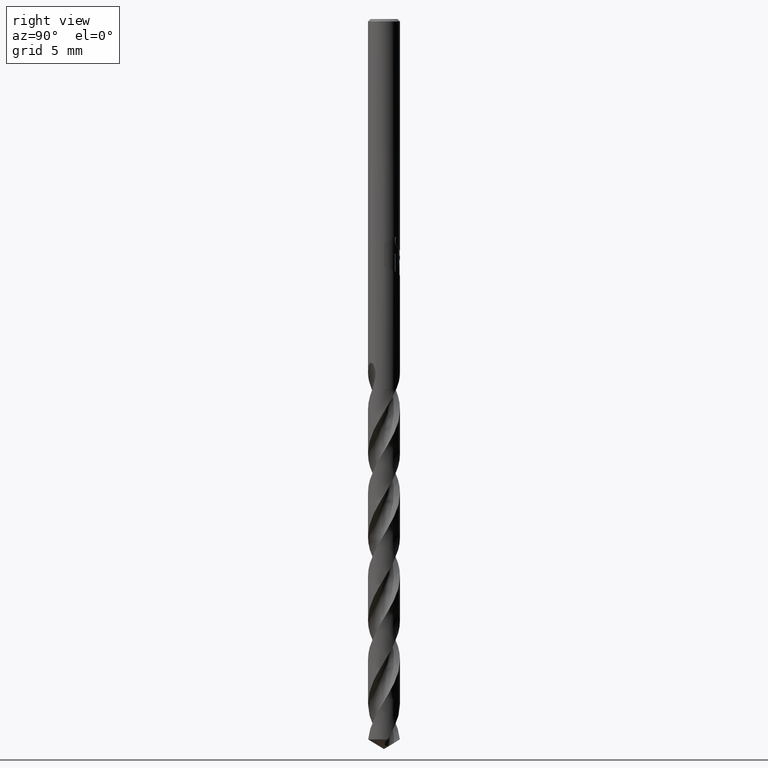
[diagram: clean part render]
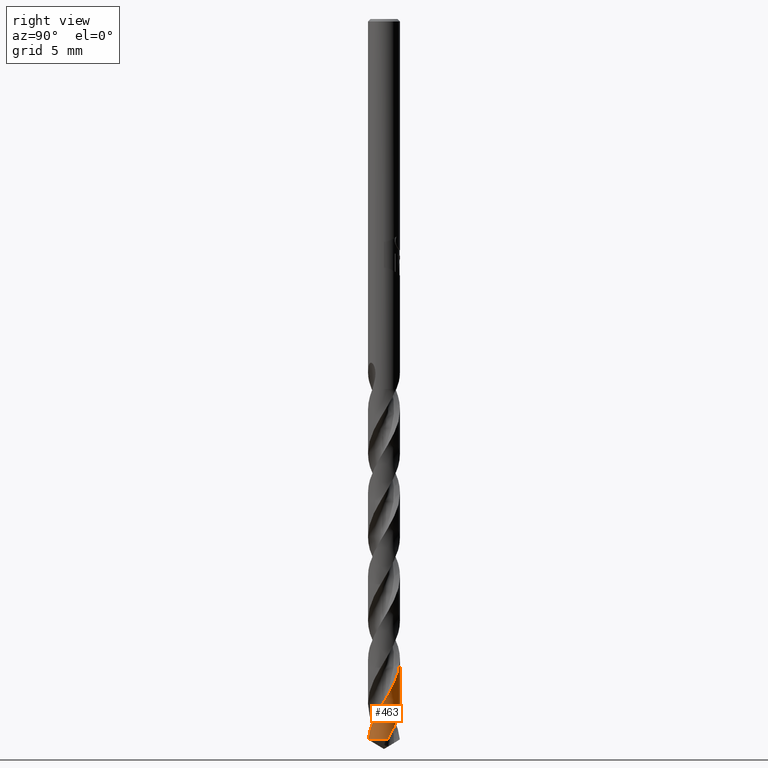
[diagram: same view with one face highlighted and labeled with its STEP entity id]
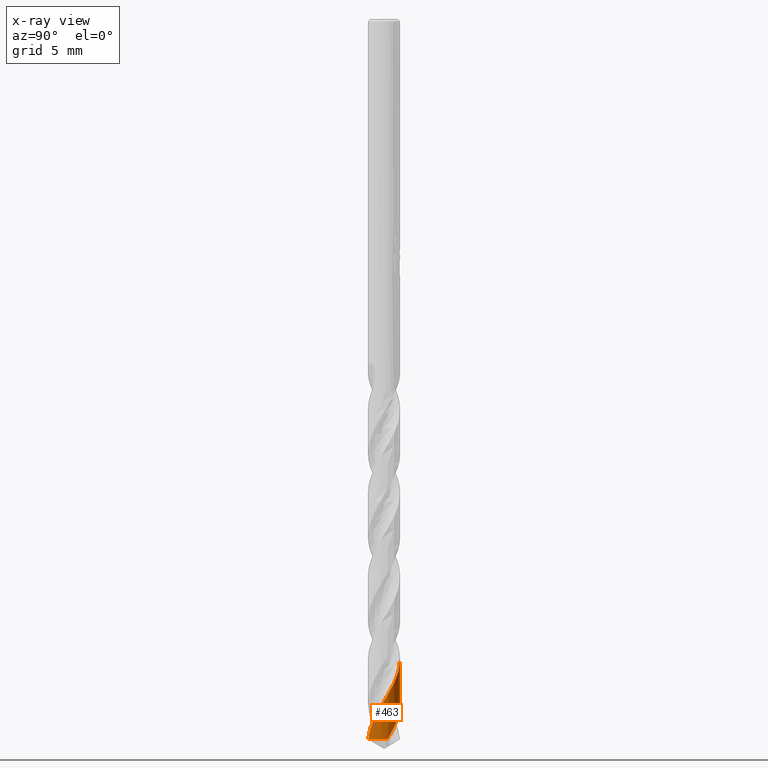
[diagram: x-ray of the same camera — body ghosted, the highlighted face saturated]
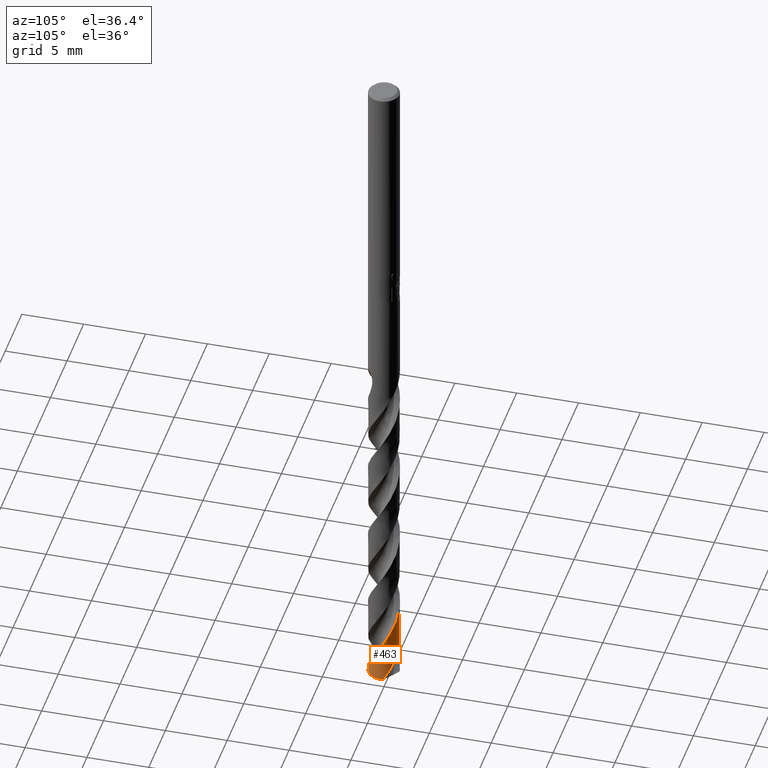
[diagram: same view with one face highlighted and labeled with its STEP entity id]
A machine part, right view. The second image highlights one B-rep face of the part: STEP entity #463.
The next image is the same camera in x-ray: the body ghosted, the highlighted face saturated — about 0% of this face is hidden behind the body in this view.
A second angle (auxiliary view) of the same face is appended — the face is thin or edge-on in the first view.
In plain terms, the highlighted conical surface has half-angle 0 deg.
Its self-contained STEP definition (entity closure, byte-faithful):
#315=EDGE_CURVE('',#749,#375,#838,.T.);
#365=EDGE_CURVE('',#473,#375,#892,.T.);
#375=VERTEX_POINT('',#902);
#463=ADVANCED_FACE('',(#995),#996,.T.);
#471=EDGE_CURVE('',#473,#693,#1004,.T.);
#473=VERTEX_POINT('',#1006);
#693=VERTEX_POINT('',#1248);
#749=VERTEX_POINT('',#1310);
#755=EDGE_CURVE('',#749,#693,#1316,.T.);
#838=LINE('',#1756,#1757);
#892=B_SPLINE_CURVE_WITH_KNOTS('',3,(#2591,#2592,#2593,#2594,#2595,#2596,#2597,#2598,#2599,#2600,#2601,#2602,#2603,#2604,#2605,#2606,#2607,#2608,#2609,#2610,#2611,#2612,#2613,#2614,#2615,#2616,#2617,#2618,#2619,#2620,#2621,#2622,#2623,#2624,#2625,#2626,#2627,#2628,#2629,#2630,#2631,#2632,#2633,#2634,#2635,#2636,#2637,#2638,#2639,#2640,#2641,#2642,#2643,#2644,#2645,#2646,#2647,#2648,#2649,#2650,#2651,#2652,#2653,#2654,#2655,#2656,#2657,#2658,#2659,#2660,#2661,#2662,#2663,#2664,#2665,#2666,#2667,#2668,#2669,#2670,#2671,#2672,#2673,#2674,#2675,#2676,#2677,#2678,#2679,#2680,#2681,#2682,#2683,#2684,#2685,#2686,#2687,#2688,#2689,#2690,#2691,#2692,#2693,#2694,#2695,#2696,#2697,#2698,#2699,#2700,#2701,#2702,#2703,#2704,#2705,#2706,#2707,#2708,#2709,#2710,#2711,#2712,#2713,#2714,#2715,#2716,#2717,#2718,#2719,#2720,#2721,#2722,#2723,#2724,#2725,#2726,#2727,#2728,#2729,#2730,#2731,#2732,#2733,#2734,#2735,#2736,#2737,#2738,#2739,#2740),.UNSPECIFIED.,.F.,.F.,(4,2,2,2,2,2,2,2,2,2,2,2,2,2,2,2,2,2,2,2,2,2,2,2,2,2,2,2,2,2,2,2,2,2,2,2,2,2,2,2,2,2,2,2,2,2,2,2,2,2,2,2,2,2,2,2,2,2,2,2,2,2,2,2,2,2,2,2,2,2,2,2,2,2,4),(0.0,0.365916372222381,0.820304791255195,1.04655696786123,1.27803307812477,2.11266659182698,2.32275710199181,3.15788784397125,3.36212088962481,4.21683285897001,4.31563751838501,5.03475957910948,5.66145739077558,6.1102102127332,6.65287451289157,7.09969309095822,7.70523282328109,8.15333191463379,8.62750838921573,9.27581148330259,9.50252762851326,10.2990852815213,10.5310919660561,11.3205802459735,11.5605495352967,12.3403776657064,12.8353441999944,13.2851131150844,13.9213311786311,14.373701780281,14.9170809289804,15.3673247441859,15.979547237918,16.4311816263969,16.9089785846059,17.5646067982347,17.7916233352997,18.597299418671,18.8287801051193,19.6280799395391,19.8666041904523,20.6570301266019,21.1467772154434,21.5996978178747,22.242180949172,22.6978093734393,23.2436558936871,23.6970731446351,24.3144593837787,24.7693138109984,25.2504682043452,25.9121513271063,26.1400153917101,26.9507141600616,27.1833007364029,27.9920988956226,28.2331617409005,29.0370226530138,29.4918883354473,30.0084083575428,30.4597777006986,30.9059589686864,31.2500066492073,31.3290123694641,31.4340604846941,31.5372028871265,31.6848006548203,31.9147010355751,32.010917240923,32.0711725410525,32.1268236191268,32.1998986544673,32.357736841362,32.5721091756097,33.0274677063609),.UNSPECIFIED.);
#902=CARTESIAN_POINT('',(-3.2190571851482E-012,1.24998980619325,-53.4600083611403));
#995=FACE_OUTER_BOUND('',#3449,.T.);
#996=CONICAL_SURFACE('',#3450,1.24995,3.65511447645748E-006);
#1004=CIRCLE('',#3494,1.25);
#1006=CARTESIAN_POINT('',(1.21820199376776,0.280149785615211,-56.2489242262156));
#1248=CARTESIAN_POINT('',(0.175120365243371,-1.23767235473571,-56.2489242262156));
#1310=CARTESIAN_POINT('',(-1.63085901644642E-015,1.24997726255621,-50.0282042075411));
#1316=B_SPLINE_CURVE_WITH_KNOTS('',3,(#8398,#8399,#8400,#8401,#8402,#8403,#8404,#8405,#8406,#8407,#8408,#8409,#8410,#8411,#8412,#8413,#8414,#8415,#8416,#8417,#8418,#8419,#8420,#8421,#8422,#8423,#8424,#8425,#8426,#8427,#8428,#8429,#8430,#8431,#8432,#8433,#8434,#8435,#8436,#8437,#8438,#8439,#8440,#8441,#8442,#8443,#8444,#8445,#8446,#8447,#8448,#8449,#8450,#8451,#8452,#8453,#8454,#8455,#8456,#8457,#8458,#8459,#8460,#8461,#8462,#8463,#8464,#8465,#8466,#8467,#8468,#8469,#8470,#8471,#8472,#8473,#8474,#8475,#8476,#8477,#8478,#8479,#8480,#8481,#8482,#8483,#8484,#8485,#8486,#8487,#8488,#8489,#8490,#8491,#8492,#8493,#8494,#8495,#8496,#8497,#8498,#8499,#8500,#8501,#8502,#8503,#8504,#8505,#8506,#8507,#8508,#8509,#8510,#8511,#8512,#8513,#8514,#8515,#8516,#8517,#8518,#8519,#8520,#8521,#8522,#8523,#8524,#8525,#8526,#8527,#8528,#8529,#8530,#8531,#8532,#8533,#8534,#8535,#8536,#8537,#8538,#8539,#8540,#8541,#8542,#8543,#8544,#8545,#8546,#8547,#8548,#8549,#8550,#8551,#8552,#8553,#8554,#8555,#8556,#8557,#8558,#8559,#8560,#8561,#8562,#8563,#8564,#8565,#8566,#8567,#8568,#8569,#8570,#8571,#8572,#8573,#8574,#8575,#8576,#8577),.UNSPECIFIED.,.F.,.F.,(4,2,2,2,2,2,2,2,2,2,2,2,2,2,2,2,2,2,2,2,2,2,2,2,2,2,2,2,2,2,2,2,2,2,2,2,2,2,2,2,2,2,2,2,2,2,2,2,2,2,2,2,2,2,2,2,2,2,2,2,2,2,2,2,2,2,2,2,2,2,2,2,2,2,2,2,2,2,2,2,2,2,2,2,2,2,2,2,2,4),(0.0,0.0909348931718711,0.115186404871069,0.126380924618009,0.133713174575487,0.13948985167161,0.143998271473783,0.147488724298821,0.150173072160435,0.152226289511834,0.153789951420098,0.154976708090192,0.155875004566876,0.156553553889951,0.316042703266544,0.352636866964819,0.372468255474102,0.389006252391213,0.408476555021637,0.443421068836232,0.486408987907577,0.60269619316079,0.755117598854112,0.830415767092418,0.89063847978405,0.959537293950322,0.997951065865658,1.09698685808744,1.30077163526895,1.48442158252795,1.66019078902333,2.14607847380218,2.75932737589629,3.5783399073448,3.8065169713828,4.29200475412673,4.89939587442972,5.27658758449398,5.86265981877751,6.3252195000613,6.94965006182895,7.32635802853059,7.91129176533725,8.37867294591997,9.00863678988123,9.37497656258834,9.95776221305471,10.4308968229521,11.065683557127,11.4236683442172,12.0056654136052,12.4802578372729,13.1159354979964,13.4719022686478,14.0533447300325,14.5286798215418,15.1652239522879,15.519369418626,16.1008941549275,16.5751121737535,17.2105555432538,17.5658527380777,18.1471049861199,18.6212119408332,19.2563336845716,19.6115126588065,20.1921493381833,20.6671410470568,21.3030497491658,21.6565153287659,22.23733066286,22.7109259570928,23.34555713719,23.7004541160807,24.2809905435139,24.7545116749879,25.3889046918527,25.7435711029265,26.3236035371818,26.7976664052889,27.4320243638706,27.7860757874193,28.3668763025597,28.8387480909508,29.4705654763868,29.8256577611619,30.4019313972766,31.1266380394981,31.4946311360113,31.8656853193045),.UNSPECIFIED.);
#1756=CARTESIAN_POINT('',(-1.5309022535244E-016,1.24995,-42.5694621131078));
#1757=VECTOR('',#8697,1.0);
#2591=CARTESIAN_POINT('',(1.21820199376776,0.28014978561521,-56.2489242262156));
#2592=CARTESIAN_POINT('',(1.20410905613125,0.341429744020133,-56.1444093714923));
#2593=CARTESIAN_POINT('',(1.18545508216414,0.401442202196847,-56.0392148419657));
#2594=CARTESIAN_POINT('',(1.13353361235069,0.532640807342113,-55.8047358331904));
#2595=CARTESIAN_POINT('',(1.09797794156153,0.602568552148083,-55.6757900692852));
#2596=CARTESIAN_POINT('',(1.03512589482031,0.70180628452883,-55.48153377448));
#2597=CARTESIAN_POINT('',(1.01273372599989,0.733742036686589,-55.4170400205659));
#2598=CARTESIAN_POINT('',(0.964577700768516,0.796031649957002,-55.2862440947739));
#2599=CARTESIAN_POINT('',(0.938791865387572,0.826280725525036,-55.2198763125255));
#2600=CARTESIAN_POINT('',(0.813553650432938,0.959766775718274,-54.9154117926667));
#2601=CARTESIAN_POINT('',(0.698371562676192,1.04654111006414,-54.6822663986016));
#2602=CARTESIAN_POINT('',(0.539004506046306,1.12838605034473,-54.3841230595476));
#2603=CARTESIAN_POINT('',(0.50631702429609,1.14342719857296,-54.3239877452621));
#2604=CARTESIAN_POINT('',(0.34025396415216,1.21130225208029,-54.0255183664637));
#2605=CARTESIAN_POINT('',(0.199371651772876,1.24226445905972,-53.7923584524739));
#2606=CARTESIAN_POINT('',(0.0213927162779941,1.25029706993826,-53.4957634294143));
#2607=CARTESIAN_POINT('',(-0.013592674366106,1.25040823952202,-53.43731385323));
#2608=CARTESIAN_POINT('',(-0.195389180823723,1.24332548969328,-53.1347221011557));
#2609=CARTESIAN_POINT('',(-0.339745977248664,1.21181909207782,-52.8961505881404));
#2610=CARTESIAN_POINT('',(-0.490911865738856,1.14967788452035,-52.6237550909922));
#2611=CARTESIAN_POINT('',(-0.506409051772072,1.14293623472397,-52.5955154354022));
#2612=CARTESIAN_POINT('',(-0.633791154985301,1.08441828693158,-52.3618319198906));
#2613=CARTESIAN_POINT('',(-0.737745575189316,1.01661602764539,-52.1597797065531));
#2614=CARTESIAN_POINT('',(-0.910872352043278,0.862786915403041,-51.7762893872643));
#2615=CARTESIAN_POINT('',(-0.981842697197945,0.781081638638097,-51.596592306726));
#2616=CARTESIAN_POINT('',(-1.08424155013131,0.626774594496716,-51.2901782319376));
#2617=CARTESIAN_POINT('',(-1.12087708268031,0.558607032604259,-51.163130991496));
#2618=CARTESIAN_POINT('',(-1.18736770192021,0.401640697043869,-50.880548036016));
#2619=CARTESIAN_POINT('',(-1.21403071792353,0.311943777511795,-50.7248636101863));
#2620=CARTESIAN_POINT('',(-1.24401022911272,0.144235978356031,-50.4428197668445));
#2621=CARTESIAN_POINT('',(-1.25052426921931,0.0674385305644809,-50.3162856082723));
#2622=CARTESIAN_POINT('',(-1.24915308772798,-0.113665490209233,-50.0163245965857));
#2623=CARTESIAN_POINT('',(-1.23535303342366,-0.217304467333834,-49.8426249323484));
#2624=CARTESIAN_POINT('',(-1.18916201225734,-0.392795877151728,-49.5423252244575));
#2625=CARTESIAN_POINT('',(-1.16265743325968,-0.465410963312582,-49.4154221183314));
#2626=CARTESIAN_POINT('',(-1.09474065419113,-0.60879545266425,-49.1524907930443));
#2627=CARTESIAN_POINT('',(-1.05276089813011,-0.678804416925763,-49.0164485493102));
#2628=CARTESIAN_POINT('',(-0.937838281631376,-0.833855841037921,-48.6964415976163));
#2629=CARTESIAN_POINT('',(-0.859831726777781,-0.914054879705369,-48.5140492689586));
#2630=CARTESIAN_POINT('',(-0.741765859433254,-1.00683870089639,-48.2645323541768));
#2631=CARTESIAN_POINT('',(-0.710149999251599,-1.02937779261458,-48.1996624347888));
#2632=CARTESIAN_POINT('',(-0.562997307344565,-1.12429477797017,-47.9081549885288));
#2633=CARTESIAN_POINT('',(-0.437145352873387,-1.17895409437766,-47.6858164078551));
#2634=CARTESIAN_POINT('',(-0.266325977552613,-1.22191163861543,-47.3932285446972));
#2635=CARTESIAN_POINT('',(-0.227456388944933,-1.22973548637108,-47.3269984913132));
#2636=CARTESIAN_POINT('',(-0.0551399642281717,-1.255995219554,-47.0367829827852));
#2637=CARTESIAN_POINT('',(0.0804643335487957,-1.25464306762575,-46.8169111478318));
#2638=CARTESIAN_POINT('',(0.253747840730879,-1.22462391212793,-46.5249064779365));
#2639=CARTESIAN_POINT('',(0.293667835077306,-1.21566240491649,-46.4565884011634));
#2640=CARTESIAN_POINT('',(0.460825169899684,-1.16945934072554,-46.1677777568871));
#2641=CARTESIAN_POINT('',(0.582270947730163,-1.11400781795543,-45.9511575959867));
#2642=CARTESIAN_POINT('',(0.763016551857143,-0.993638569212133,-45.5907884139783));
#2643=CARTESIAN_POINT('',(0.828342121005244,-0.939891335338529,-45.4499410704943));
#2644=CARTESIAN_POINT('',(0.941907983050284,-0.825292665207506,-45.1827816736736));
#2645=CARTESIAN_POINT('',(0.990824108380374,-0.765874477398094,-45.0564211011999));
#2646=CARTESIAN_POINT('',(1.09502046038628,-0.612476477190127,-44.7493644850366));
#2647=CARTESIAN_POINT('',(1.14406336163026,-0.515102063882328,-44.568354215101));
#2648=CARTESIAN_POINT('',(1.20544367571303,-0.339515367807576,-44.2605987320337));
#2649=CARTESIAN_POINT('',(1.22410872485536,-0.264392343952961,-44.1335187175482));
#2650=CARTESIAN_POINT('',(1.24967131992688,-0.0964474954298429,-43.8518914246015));
#2651=CARTESIAN_POINT('',(1.25339170561286,-0.00355262914592747,-43.6972047446365));
#2652=CARTESIAN_POINT('',(1.24129751365793,0.165771538084262,-43.4161634427148));
#2653=CARTESIAN_POINT('',(1.22874847012308,0.241807134532719,-43.2896420332044));
#2654=CARTESIAN_POINT('',(1.18284947171998,0.417344866219538,-42.9891370812945));
#2655=CARTESIAN_POINT('',(1.14384810027036,0.514719341237845,-42.8148771335829));
#2656=CARTESIAN_POINT('',(1.05566861295378,0.673717831483743,-42.5140059331638));
#2657=CARTESIAN_POINT('',(1.01208224917024,0.737567570596285,-42.3870889335211));
#2658=CARTESIAN_POINT('',(0.910928718656775,0.859785646532399,-42.1241603650451));
#2659=CARTESIAN_POINT('',(0.853000475108017,0.917281403786797,-41.9881368408775));
#2660=CARTESIAN_POINT('',(0.703119289906316,1.03947221435076,-41.6674995961627));
#2661=CARTESIAN_POINT('',(0.607394696279641,1.09813433929555,-41.4844842056763));
#2662=CARTESIAN_POINT('',(0.469932764023076,1.15888746703109,-41.2347238844859));
#2663=CARTESIAN_POINT('',(0.433963253473107,1.1728276031107,-41.1702687877685));
#2664=CARTESIAN_POINT('',(0.267678621647331,1.22858869715877,-40.878308974602));
#2665=CARTESIAN_POINT('',(0.131705032662765,1.2505017261614,-40.6551643506717));
#2666=CARTESIAN_POINT('',(-0.0445343119225877,1.2497674812417,-40.3623532326411));
#2667=CARTESIAN_POINT('',(-0.0837367379952451,1.2477498435532,-40.2967743424354));
#2668=CARTESIAN_POINT('',(-0.257485910034622,1.23060218118008,-40.0060911296217));
#2669=CARTESIAN_POINT('',(-0.389172401786369,1.19551597703978,-39.785179676178));
#2670=CARTESIAN_POINT('',(-0.549638770550786,1.12333408915843,-39.4929634498503));
#2671=CARTESIAN_POINT('',(-0.585596647170808,1.10500894452522,-39.4255598365027));
#2672=CARTESIAN_POINT('',(-0.736404039743256,1.01875596388353,-39.136258015713));
#2673=CARTESIAN_POINT('',(-0.840937443705223,0.934360472320961,-38.9183295749525));
#2674=CARTESIAN_POINT('',(-0.985525545982784,0.773262993360266,-38.5590200852484));
#2675=CARTESIAN_POINT('',(-1.03463897599773,0.706226582093686,-38.4206477811134));
#2676=CARTESIAN_POINT('',(-1.11580465938432,0.568518373844225,-38.155948708847));
#2677=CARTESIAN_POINT('',(-1.14861708348147,0.498908549249296,-38.0295980489038));
#2678=CARTESIAN_POINT('',(-1.21202452269462,0.324336688891875,-37.722060815145));
#2679=CARTESIAN_POINT('',(-1.23566339334401,0.217594719361373,-37.5405575724803));
#2680=CARTESIAN_POINT('',(-1.25190995181539,0.0319939040263573,-37.2322974697995));
#2681=CARTESIAN_POINT('',(-1.25148683221252,-0.0454189136298422,-37.1052040746329));
#2682=CARTESIAN_POINT('',(-1.23489594101058,-0.214252842420625,-36.8239505599607));
#2683=CARTESIAN_POINT('',(-1.21568405734793,-0.30497142188473,-36.6696546182179));
#2684=CARTESIAN_POINT('',(-1.16240162578477,-0.465894053745107,-36.3890052185059));
#2685=CARTESIAN_POINT('',(-1.13154332430456,-0.536505746412631,-36.2624880380831));
#2686=CARTESIAN_POINT('',(-1.04382601156805,-0.695486668674035,-35.9617559238582));
#2687=CARTESIAN_POINT('',(-0.981982322860469,-0.780384471257833,-35.7872627038756));
#2688=CARTESIAN_POINT('',(-0.857274016688786,-0.912879666675252,-35.4861542727275));
#2689=CARTESIAN_POINT('',(-0.79930740685823,-0.964033220713045,-35.3592318746789));
#2690=CARTESIAN_POINT('',(-0.671180174789407,-1.05757945687364,-35.0963048923989));
#2691=CARTESIAN_POINT('',(-0.600884800738551,-1.09903920745995,-34.9602895511239));
#2692=CARTESIAN_POINT('',(-0.42532449064596,-1.18066381357752,-34.6392630702137));
#2693=CARTESIAN_POINT('',(-0.317868247592029,-1.21399102926519,-34.4558653278429));
#2694=CARTESIAN_POINT('',(-0.169569250330597,-1.23896281157106,-34.2059163021735));
#2695=CARTESIAN_POINT('',(-0.131403066177591,-1.24358676407824,-34.1416751551126));
#2696=CARTESIAN_POINT('',(0.0432643616679772,-1.25662925672517,-33.8500985988967));
#2697=CARTESIAN_POINT('',(0.180338774400432,-1.24438170246984,-33.6271295339079));
#2698=CARTESIAN_POINT('',(0.350786135365474,-1.20032499722428,-33.3346395917714));
#2699=CARTESIAN_POINT('',(0.388202962392441,-1.18874674454323,-33.2692076057314));
#2700=CARTESIAN_POINT('',(0.552920989937954,-1.1291904842649,-32.9775801484857));
#2701=CARTESIAN_POINT('',(0.672451519282842,-1.06237118355085,-32.7556008834826));
#2702=CARTESIAN_POINT('',(0.810671109803522,-0.952229925177029,-32.4620436384989));
#2703=CARTESIAN_POINT('',(0.841078101316887,-0.925475535909484,-32.3943936747231));
#2704=CARTESIAN_POINT('',(0.966918947104009,-0.803449820503801,-32.102581390896));
#2705=CARTESIAN_POINT('',(1.04789912055914,-0.694545134067448,-31.8826599150357));
#2706=CARTESIAN_POINT('',(1.14505165253799,-0.506913095142234,-31.5316604558756));
#2707=CARTESIAN_POINT('',(1.17390505528938,-0.435982787276063,-31.4039065922303));
#2708=CARTESIAN_POINT('',(1.22134908163326,-0.279525609791277,-31.1328422592674));
#2709=CARTESIAN_POINT('',(1.23784939079713,-0.193862807749795,-30.9898562325325));
#2710=CARTESIAN_POINT('',(1.25183109006335,-0.0312674420418367,-30.7200263125132));
#2711=CARTESIAN_POINT('',(1.25139741945611,0.044869078879907,-30.5939381037975));
#2712=CARTESIAN_POINT('',(1.23689231733525,0.194865539330464,-30.3436714747797));
#2713=CARTESIAN_POINT('',(1.22304204058351,0.2682501226057,-30.2186955066205));
#2714=CARTESIAN_POINT('',(1.18724287908937,0.394969941847528,-29.9998207624113));
#2715=CARTESIAN_POINT('',(1.16771899473848,0.449588868082158,-29.9048648798672));
#2716=CARTESIAN_POINT('',(1.13868627797503,0.515590053844311,-29.7886487706097));
#2717=CARTESIAN_POINT('',(1.13323553471026,0.527458677085438,-29.7677520089207));
#2718=CARTESIAN_POINT('',(1.11984290189537,0.555448539683174,-29.7177250198585));
#2719=CARTESIAN_POINT('',(1.11191583079295,0.571143513940307,-29.6891449775576));
#2720=CARTESIAN_POINT('',(1.0956887337456,0.60167803870643,-29.6322436904478));
#2721=CARTESIAN_POINT('',(1.08741865844893,0.616489234861031,-29.6039991255838));
#2722=CARTESIAN_POINT('',(1.06681773391757,0.6517153173066,-29.5349698996659));
#2723=CARTESIAN_POINT('',(1.05432795256197,0.671700379668845,-29.4942101890809));
#2724=CARTESIAN_POINT('',(1.0216772516071,0.720918883430235,-29.3889080729789));
#2725=CARTESIAN_POINT('',(1.00766951643639,0.739687028135159,-29.3436591053657));
#2726=CARTESIAN_POINT('',(0.993353185737608,0.758651665633933,-29.2997285105938));
#2727=CARTESIAN_POINT('',(0.989011996773971,0.764304622040717,-29.2868417442988));
#2728=CARTESIAN_POINT('',(0.981742367420288,0.773599390988861,-29.2659858078745));
#2729=CARTESIAN_POINT('',(0.97889402665135,0.777201005501608,-29.2579837352849));
#2730=CARTESIAN_POINT('',(0.973316034693385,0.784173136400958,-29.2426427473293));
#2731=CARTESIAN_POINT('',(0.970594915559666,0.787539065710005,-29.2353025544974));
#2732=CARTESIAN_POINT('',(0.96419713156521,0.795367740814435,-29.2183792853287));
#2733=CARTESIAN_POINT('',(0.960489795348301,0.799841797472359,-29.2088181644305));
#2734=CARTESIAN_POINT('',(0.948523929006746,0.814074039793022,-29.178739231813));
#2735=CARTESIAN_POINT('',(0.939988602467181,0.823925317349345,-29.1584119714134));
#2736=CARTESIAN_POINT('',(0.918936893190727,0.847429807492463,-29.110946805122));
#2737=CARTESIAN_POINT('',(0.906131566020004,0.861134509893101,-29.0840718944796));
#2738=CARTESIAN_POINT('',(0.863764742250199,0.904353218027731,-29.0012930251796));
#2739=CARTESIAN_POINT('',(0.831890017418552,0.933980393436159,-28.9473903606371));
#2740=CARTESIAN_POINT('',(0.7964910527824,0.963250776549316,-28.895));
#3449=EDGE_LOOP('',(#8855,#8856,#8857,#8858));
#3450=AXIS2_PLACEMENT_3D('',#8859,#8860,#8861);
#3494=AXIS2_PLACEMENT_3D('',#8863,#8864,#8865);
#8398=CARTESIAN_POINT('',(0.868775969749308,-0.898598002485775,-28.895));
#8399=CARTESIAN_POINT('',(0.858083659727856,-0.90893559799217,-28.9214121866362));
#8400=CARTESIAN_POINT('',(0.847154556309,-0.919134433198021,-28.9478172603143));
#8401=CARTESIAN_POINT('',(0.832922112180515,-0.931937682534327,-28.9812353377912));
#8402=CARTESIAN_POINT('',(0.829906488042843,-0.934624274016671,-28.9882637287386));
#8403=CARTESIAN_POINT('',(0.825467186817727,-0.938540580138256,-28.9985311015643));
#8404=CARTESIAN_POINT('',(0.824060865911289,-0.939775628818279,-29.0017722414739));
#8405=CARTESIAN_POINT('',(0.821725870007577,-0.941816957527043,-29.0071345268221));
#8406=CARTESIAN_POINT('',(0.820799875342317,-0.94262409035301,-29.0092561085056));
#8407=CARTESIAN_POINT('',(0.819140840735871,-0.944065863952056,-29.013048276764));
#8408=CARTESIAN_POINT('',(0.818408576522674,-0.944700742005615,-29.0147189763835));
#8409=CARTESIAN_POINT('',(0.817102647880602,-0.945830329622066,-29.0176930030216));
#8410=CARTESIAN_POINT('',(0.816529475431421,-0.946325196961381,-29.0189964192832));
#8411=CARTESIAN_POINT('',(0.815511231821861,-0.94720271568623,-29.0213085906585));
#8412=CARTESIAN_POINT('',(0.815066465567243,-0.94758546859251,-29.0223174097147));
#8413=CARTESIAN_POINT('',(0.814278862651321,-0.948262291215005,-29.0241018451928));
#8414=CARTESIAN_POINT('',(0.81393621132952,-0.948556424424901,-29.0248775044869));
#8415=CARTESIAN_POINT('',(0.813331006593004,-0.949075364753907,-29.026246321528));
#8416=CARTESIAN_POINT('',(0.813068563986429,-0.949300210710241,-29.0268395068263));
#8417=CARTESIAN_POINT('',(0.812605982562607,-0.949696191558823,-29.0278843638647));
#8418=CARTESIAN_POINT('',(0.812405909178837,-0.949867349720251,-29.0283360526016));
#8419=CARTESIAN_POINT('',(0.81205383103448,-0.950168351762969,-29.0291305090698));
#8420=CARTESIAN_POINT('',(0.811901864381711,-0.950298209488181,-29.0294732873162));
#8421=CARTESIAN_POINT('',(0.811634778630833,-0.950526327301925,-29.0300754994461));
#8422=CARTESIAN_POINT('',(0.811519681612437,-0.950624595470044,-29.0303349395458));
#8423=CARTESIAN_POINT('',(0.811317591633674,-0.950797073505426,-29.0307903384764));
#8424=CARTESIAN_POINT('',(0.811230611515443,-0.950871287933048,-29.0309863006344));
#8425=CARTESIAN_POINT('',(0.790695482129786,-0.968387697085762,-29.0772408684924));
#8426=CARTESIAN_POINT('',(0.769617274291943,-0.985244688592579,-29.122309517461));
#8427=CARTESIAN_POINT('',(0.742349948045237,-1.00558913478447,-29.1780601556356));
#8428=CARTESIAN_POINT('',(0.737220748594385,-1.00935575617211,-29.1884453848039));
#8429=CARTESIAN_POINT('',(0.729243836821779,-1.01511983220821,-29.2044548189707));
#8430=CARTESIAN_POINT('',(0.726428855168878,-1.01713621135462,-29.2100776807689));
#8431=CARTESIAN_POINT('',(0.721244630314136,-1.02081710940446,-29.2203873922235));
#8432=CARTESIAN_POINT('',(0.718879674257852,-1.02248397101214,-29.2250732688629));
#8433=CARTESIAN_POINT('',(0.713713530314247,-1.02609833062655,-29.2352743082833));
#8434=CARTESIAN_POINT('',(0.710910225502145,-1.02804256852729,-29.2407874538801));
#8435=CARTESIAN_POINT('',(0.703047483004885,-1.03344817929511,-29.2561941561783));
#8436=CARTESIAN_POINT('',(0.69796955149193,-1.03688456232362,-29.2660790485417));
#8437=CARTESIAN_POINT('',(0.686581142229506,-1.04446969847785,-29.2881306623741));
#8438=CARTESIAN_POINT('',(0.680264162905005,-1.04859492012435,-29.3002830560172));
#8439=CARTESIAN_POINT('',(0.656730530955912,-1.06366131865706,-29.345355778601));
#8440=CARTESIAN_POINT('',(0.639680186380603,-1.07399729844407,-29.3777744126999));
#8441=CARTESIAN_POINT('',(0.599275684258597,-1.09718829109654,-29.4543668965458));
#8442=CARTESIAN_POINT('',(0.576044340735869,-1.10955565060466,-29.4980879850329));
#8443=CARTESIAN_POINT('',(0.540964349069239,-1.12684558455296,-29.5632882054038));
#8444=CARTESIAN_POINT('',(0.529283501186902,-1.13237898827135,-29.5848676365098));
#8445=CARTESIAN_POINT('',(0.508122758199039,-1.14200468345581,-29.6236905109102));
#8446=CARTESIAN_POINT('',(0.498664718910563,-1.14616629559659,-29.6409476750336));
#8447=CARTESIAN_POINT('',(0.478273672748461,-1.15483821492481,-29.6779334771526));
#8448=CARTESIAN_POINT('',(0.467319047937355,-1.15931469942442,-29.697669794483));
#8449=CARTESIAN_POINT('',(0.450145106327,-1.16604916627263,-29.7283911893716));
#8450=CARTESIAN_POINT('',(0.443974265413141,-1.16841274817127,-29.7393862862878));
#8451=CARTESIAN_POINT('',(0.421812062852869,-1.17670019998661,-29.7787154673374));
#8452=CARTESIAN_POINT('',(0.405700450064806,-1.18235238566235,-29.8070120453051));
#8453=CARTESIAN_POINT('',(0.356083584411879,-1.19862356319308,-29.8935273286047));
#8454=CARTESIAN_POINT('',(0.322227808086238,-1.20816659567197,-29.9516445159065));
#8455=CARTESIAN_POINT('',(0.257145073009134,-1.22357763623696,-30.0622884903281));
#8456=CARTESIAN_POINT('',(0.226055295136733,-1.22969989933083,-30.1146882176009));
#8457=CARTESIAN_POINT('',(0.164872916853299,-1.23935329060008,-30.2173985188751));
#8458=CARTESIAN_POINT('',(0.134811882460698,-1.24298162723518,-30.2676835866551));
#8459=CARTESIAN_POINT('',(0.0213459721297254,-1.25251768484258,-30.4568161425935));
#8460=CARTESIAN_POINT('',(-0.0625106580984137,-1.25114498353103,-30.5951375478712));
#8461=CARTESIAN_POINT('',(-0.250561514810007,-1.22908388888412,-30.9091538029725));
#8462=CARTESIAN_POINT('',(-0.353550259439426,-1.20351568416137,-31.0838917654762));
#8463=CARTESIAN_POINT('',(-0.583754333367387,-1.11420004386259,-31.4930156608084));
#8464=CARTESIAN_POINT('',(-0.705723944494789,-1.04121198250382,-31.7256920943912));
#8465=CARTESIAN_POINT('',(-0.842715790326996,-0.923933324814687,-32.0249462988083));
#8466=CARTESIAN_POINT('',(-0.871358618175182,-0.896972988907671,-32.090098796938));
#8467=CARTESIAN_POINT('',(-0.956860465860503,-0.808519062537627,-32.2939664303883));
#8468=CARTESIAN_POINT('',(-1.00879834577453,-0.742695948062317,-32.4320416283124));
#8469=CARTESIAN_POINT('',(-1.11001082840053,-0.584038212731241,-32.7444052063365));
#8470=CARTESIAN_POINT('',(-1.1550132858945,-0.489081653506587,-32.9174601302185));
#8471=CARTESIAN_POINT('',(-1.20792920311802,-0.327760345641414,-33.1987514949692));
#8472=CARTESIAN_POINT('',(-1.22333235663103,-0.264515754857616,-33.3062155660886));
#8473=CARTESIAN_POINT('',(-1.24993166608802,-0.100759190324592,-33.5815852351285));
#8474=CARTESIAN_POINT('',(-1.25399741181567,0.000541382109813221,-33.7487311531019));
#8475=CARTESIAN_POINT('',(-1.23934494868365,0.180788912007263,-34.048403298394));
#8476=CARTESIAN_POINT('',(-1.2252906537533,0.259441954392077,-34.1800612708203));
#8477=CARTESIAN_POINT('',(-1.17492925522901,0.439786878360746,-34.4908728329369));
#8478=CARTESIAN_POINT('',(-1.13272176488543,0.539303505937175,-34.6688470748812));
#8479=CARTESIAN_POINT('',(-1.0453638345986,0.688290034857708,-34.9549862254485));
#8480=CARTESIAN_POINT('',(-1.00819530086274,0.741661645224662,-35.0623507348469));
#8481=CARTESIAN_POINT('',(-0.903217572304763,0.869865210456843,-35.337368897463));
#8482=CARTESIAN_POINT('',(-0.830118757310038,0.939892245358703,-35.5042659881977));
#8483=CARTESIAN_POINT('',(-0.684811829616671,1.0487364058149,-35.8051199296175));
#8484=CARTESIAN_POINT('',(-0.615792609193358,1.09068837176779,-35.9382026146118));
#8485=CARTESIAN_POINT('',(-0.445483624772512,1.1728798574623,-36.2521097523101));
#8486=CARTESIAN_POINT('',(-0.341900418978178,1.20716363660719,-36.4317118139286));
#8487=CARTESIAN_POINT('',(-0.1730195316956,1.23950929654946,-36.7165855077875));
#8488=CARTESIAN_POINT('',(-0.110154611534808,1.24666615425297,-36.8210525812731));
#8489=CARTESIAN_POINT('',(0.0533433980818826,1.25282569967932,-37.0926036424455));
#8490=CARTESIAN_POINT('',(0.153896014757655,1.24449203191934,-37.2589638942672));
#8491=CARTESIAN_POINT('',(0.332391652910807,1.20768942875871,-37.5609757837391));
#8492=CARTESIAN_POINT('',(0.410508823727845,1.18341306209699,-37.6957434765378));
#8493=CARTESIAN_POINT('',(0.586507934405592,1.10919722734203,-38.0128088797651));
#8494=CARTESIAN_POINT('',(0.681409918916396,1.05357900836311,-38.1938391307323));
#8495=CARTESIAN_POINT('',(0.816663813905275,0.948271285405443,-38.4778181897738));
#8496=CARTESIAN_POINT('',(0.86251603106661,0.906761328322405,-38.5799566631263));
#8497=CARTESIAN_POINT('',(0.97431857850653,0.789378465739036,-38.8490024691476));
#8498=CARTESIAN_POINT('',(1.03458383029757,0.708574511480368,-39.0152080802858));
#8499=CARTESIAN_POINT('',(1.12528178766069,0.550274201349498,-39.3175366490742));
#8500=CARTESIAN_POINT('',(1.15890289239655,0.475384851252431,-39.452772744992));
#8501=CARTESIAN_POINT('',(1.21984518892963,0.293849416628629,-39.7706421471106));
#8502=CARTESIAN_POINT('',(1.24093869083821,0.185685946363587,-39.9519964283697));
#8503=CARTESIAN_POINT('',(1.25136648489801,0.0147108873563379,-40.2357701787344));
#8504=CARTESIAN_POINT('',(1.25057390704594,-0.0468106982549612,-40.3373776562886));
#8505=CARTESIAN_POINT('',(1.2366013636904,-0.207935829109301,-40.6057985170037));
#8506=CARTESIAN_POINT('',(1.21592766282864,-0.306539687301335,-40.7719157845735));
#8507=CARTESIAN_POINT('',(1.15726883704404,-0.47940825669922,-41.0744240012159));
#8508=CARTESIAN_POINT('',(1.12330582425146,-0.554322359680909,-41.2099267003509));
#8509=CARTESIAN_POINT('',(1.0273267873546,-0.720436135600326,-41.5283890794215));
#8510=CARTESIAN_POINT('',(0.960037342564885,-0.807957593056573,-41.7100610082808));
#8511=CARTESIAN_POINT('',(0.838743510904535,-0.928775761336888,-41.993678333254));
#8512=CARTESIAN_POINT('',(0.792303280097324,-0.968691141799471,-42.0948102494579));
#8513=CARTESIAN_POINT('',(0.662450459728547,-1.06470978958026,-42.362843583227));
#8514=CARTESIAN_POINT('',(0.574794203819016,-1.11448898332973,-42.5290517121033));
#8515=CARTESIAN_POINT('',(0.40646192591323,-1.18485534758655,-42.8313877866803));
#8516=CARTESIAN_POINT('',(0.327977278663587,-1.20892939961376,-42.9666289506726));
#8517=CARTESIAN_POINT('',(0.140231010820226,-1.24689548376225,-43.2845864636168));
#8518=CARTESIAN_POINT('',(0.0302341693337542,-1.25440720431136,-43.4660224386124));
#8519=CARTESIAN_POINT('',(-0.14070009504827,-1.24352812205763,-43.7497712551111));
#8520=CARTESIAN_POINT('',(-0.201584198541504,-1.23511715893641,-43.8512718023884));
#8521=CARTESIAN_POINT('',(-0.359720914373247,-1.20127579322528,-44.1196673186051));
#8522=CARTESIAN_POINT('',(-0.455047578592375,-1.16851224052995,-44.2858660443048));
#8523=CARTESIAN_POINT('',(-0.619216446575529,-1.08889073960273,-44.5882167480609));
#8524=CARTESIAN_POINT('',(-0.689220353748684,-1.0459795554753,-44.7234817350952));
#8525=CARTESIAN_POINT('',(-0.84194074563297,-0.930356293392722,-45.0414463452162));
#8526=CARTESIAN_POINT('',(-0.920363994313401,-0.852874877513605,-45.2228654967327));
#8527=CARTESIAN_POINT('',(-1.02533638872838,-0.717537933379411,-45.5066055911925));
#8528=CARTESIAN_POINT('',(-1.05932903990928,-0.666325178121812,-45.608114191712));
#8529=CARTESIAN_POINT('',(-1.13858990705653,-0.525431980435676,-45.8764105926069));
#8530=CARTESIAN_POINT('',(-1.17710066175893,-0.432349588940069,-46.0425034284608));
#8531=CARTESIAN_POINT('',(-1.22612387881367,-0.256474161602737,-46.3450570482624));
#8532=CARTESIAN_POINT('',(-1.24031290759408,-0.175409369653876,-46.480629129613));
#8533=CARTESIAN_POINT('',(-1.25468233486364,0.0159716990556258,-46.799205394037));
#8534=CARTESIAN_POINT('',(-1.24843483495519,0.126221868435994,-46.9809201942837));
#8535=CARTESIAN_POINT('',(-1.21634782167421,0.294374299694325,-47.2645118440766));
#8536=CARTESIAN_POINT('',(-1.20050007844876,0.35348231137239,-47.3655750130948));
#8537=CARTESIAN_POINT('',(-1.14739006126202,0.505956919316112,-47.6335419926344));
#8538=CARTESIAN_POINT('',(-1.10305125346134,0.596490413016092,-47.7997530602055));
#8539=CARTESIAN_POINT('',(-1.00368580181375,0.749503596643394,-48.1020818035272));
#8540=CARTESIAN_POINT('',(-0.952436236327693,0.813628874155948,-48.2373127661305));
#8541=CARTESIAN_POINT('',(-0.81877704017528,0.950823208450411,-48.555252605002));
#8542=CARTESIAN_POINT('',(-0.732163094393837,1.01903693471049,-48.7366813747913));
#8543=CARTESIAN_POINT('',(-0.58484446098854,1.10641980012017,-49.0204341288216));
#8544=CARTESIAN_POINT('',(-0.529808979565276,1.13379986801311,-49.1219458858928));
#8545=CARTESIAN_POINT('',(-0.380109223647881,1.19500135029601,-49.3903537322312));
#8546=CARTESIAN_POINT('',(-0.282901956142331,1.2216809023815,-49.5565534864678));
#8547=CARTESIAN_POINT('',(-0.1024171521187,1.24846752774817,-49.8589054176763));
#8548=CARTESIAN_POINT('',(-0.0204051149782919,1.25248950264486,-49.9941706104709));
#8549=CARTESIAN_POINT('',(0.170929194832776,1.24308526330988,-50.312151808619));
#8550=CARTESIAN_POINT('',(0.279393910956958,1.22329686165664,-50.4935870945036));
#8551=CARTESIAN_POINT('',(0.442390043600278,1.17068918827347,-50.777322507489));
#8552=CARTESIAN_POINT('',(0.499326146339689,1.14755714199554,-50.8788102565195));
#8553=CARTESIAN_POINT('',(0.644228650239252,1.07586600051686,-51.1471183074151));
#8554=CARTESIAN_POINT('',(0.728528448718377,1.02068158822616,-51.3132434242523));
#8555=CARTESIAN_POINT('',(0.868135401164539,0.903071630689722,-51.6157317531719));
#8556=CARTESIAN_POINT('',(0.925515831741705,0.844158572499288,-51.7512067429475));
#8557=CARTESIAN_POINT('',(1.0451719345399,0.694347182485731,-52.0694657194937));
#8558=CARTESIAN_POINT('',(1.10212087327918,0.59989207688692,-52.2509651120644));
#8559=CARTESIAN_POINT('',(1.17049796426486,0.442902645643846,-52.5346314277016));
#8560=CARTESIAN_POINT('',(1.19080126914135,0.384983722061618,-52.6359857977946));
#8561=CARTESIAN_POINT('',(1.23296910001699,0.228815475363642,-52.9044489105664));
#8562=CARTESIAN_POINT('',(1.24738765256578,0.128918023645615,-53.070860447828));
#8563=CARTESIAN_POINT('',(1.25152086089567,-0.0534081435879379,-53.3730654370445));
#8564=CARTESIAN_POINT('',(1.24535127420281,-0.135067222268136,-53.5079756093261));
#8565=CARTESIAN_POINT('',(1.21242437600257,-0.323201884396372,-53.8250054257615));
#8566=CARTESIAN_POINT('',(1.17950873581341,-0.428053833706115,-54.0058568913399));
#8567=CARTESIAN_POINT('',(1.10734860515645,-0.583137047466496,-54.2892069669831));
#8568=CARTESIAN_POINT('',(1.07732022760018,-0.636900721065524,-54.3908920808363));
#8569=CARTESIAN_POINT('',(0.988554844909207,-0.771489535608243,-54.6584675257888));
#8570=CARTESIAN_POINT('',(0.923823137554577,-0.84794581311662,-54.8236794673208));
#8571=CARTESIAN_POINT('',(0.75861716606217,-1.00138138836603,-55.1973426724677));
#8572=CARTESIAN_POINT('',(0.654256461898798,-1.07247049501979,-55.4043749370762));
#8573=CARTESIAN_POINT('',(0.483669167275214,-1.15439199466962,-55.7183038058066));
#8574=CARTESIAN_POINT('',(0.424161360238407,-1.17756289570692,-55.8238158305326));
#8575=CARTESIAN_POINT('',(0.301545778528162,-1.21478694719997,-56.0360449558911));
#8576=CARTESIAN_POINT('',(0.23870603479614,-1.22867511651916,-56.1422609160402));
#8577=CARTESIAN_POINT('',(0.175120365243364,-1.23767235473571,-56.2489242262155));
#8697=DIRECTION('',(-4.47607641180801E-022,3.65511447644934E-006,-0.99999999999332));
#8855=ORIENTED_EDGE('',*,*,#315,.F.);
#8856=ORIENTED_EDGE('',*,*,#755,.T.);
#8857=ORIENTED_EDGE('',*,*,#471,.F.);
#8858=ORIENTED_EDGE('',*,*,#365,.T.);
#8859=CARTESIAN_POINT('',(0.0,0.0,-42.5694621131078));
#8860=DIRECTION('',(0.0,-0.0,-1.0));
#8861=DIRECTION('',(0.0,1.0,0.0));
#8863=CARTESIAN_POINT('',(0.0,0.0,-56.2489242262156));
#8864=DIRECTION('',(0.0,0.0,-1.0));
#8865=DIRECTION('',(0.0,1.0,0.0));